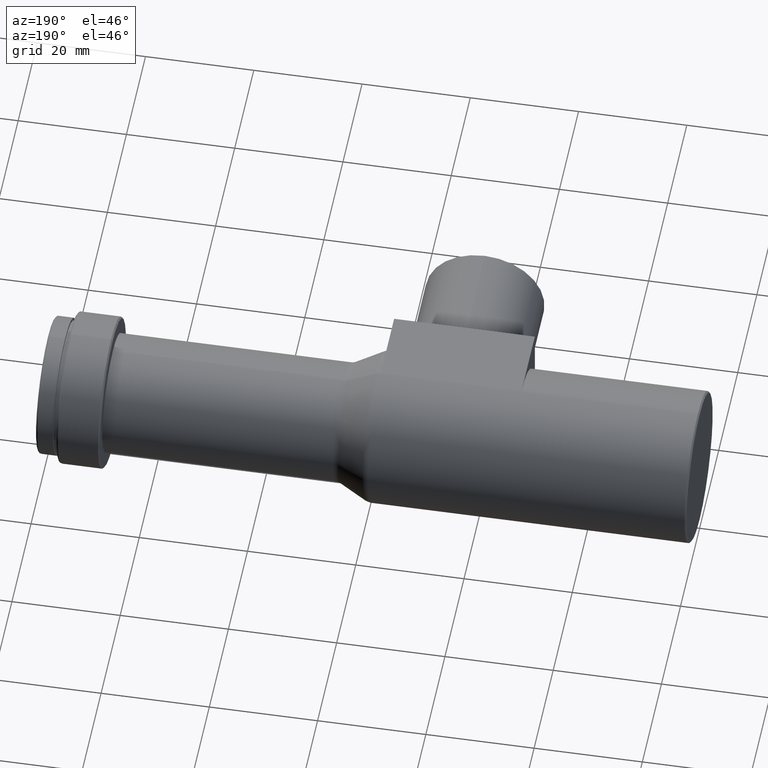
[diagram: clean part render]
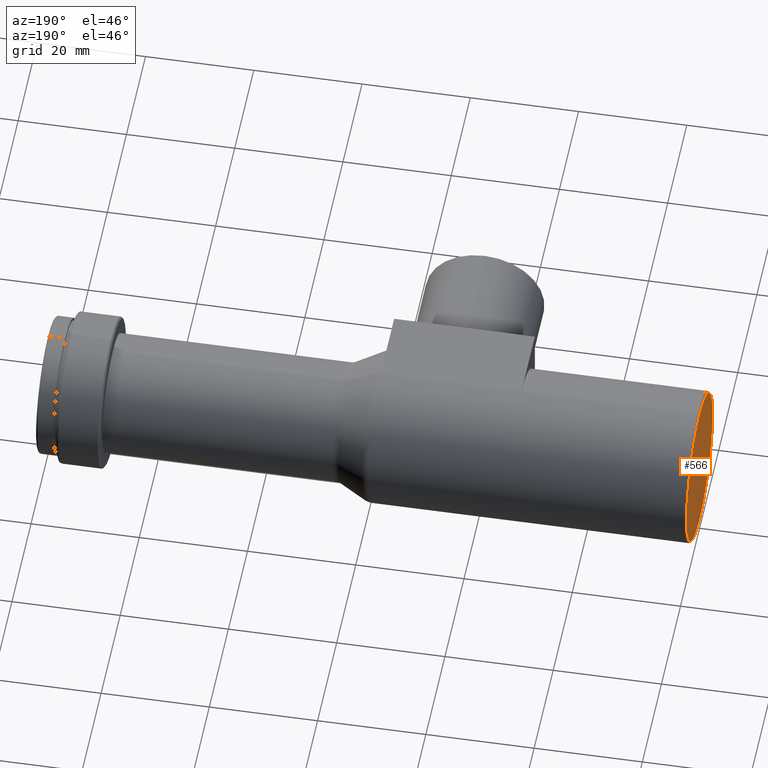
[diagram: same view with one face highlighted and labeled with its STEP entity id]
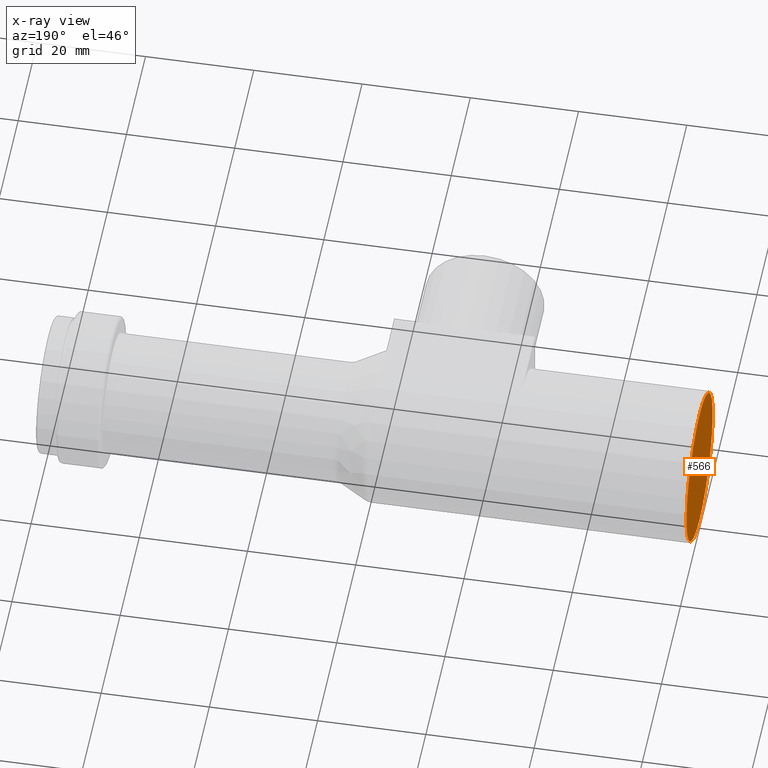
[diagram: x-ray of the same camera — body ghosted, the highlighted face saturated]
A machine part, auxiliary view. The second image highlights one B-rep face of the part: STEP entity #566.
The next image is the same camera in x-ray: the body ghosted, the highlighted face saturated — about 0% of this face is hidden behind the body in this view.
In plain terms, the highlighted planar face has unit normal (1, 0, 0).
Its self-contained STEP definition (entity closure, byte-faithful):
#3 = DIRECTION ( 'NONE',  ( -1.000000000000000000, -0.0000000000000000000, -0.0000000000000000000 ) ) ;
#74 = DIRECTION ( 'NONE',  ( 0.0000000000000000000, 0.0000000000000000000, -1.000000000000000000 ) ) ;
#86 = DIRECTION ( 'NONE',  ( 1.000000000000000000, 0.0000000000000000000, 0.0000000000000000000 ) ) ;
#117 = CIRCLE ( 'NONE', #866, 13.70000000000000100 ) ;
#165 = EDGE_CURVE ( 'NONE', #895, #267, #265, .T. ) ;
#228 = EDGE_CURVE ( 'NONE', #267, #895, #117, .T. ) ;
#234 = ORIENTED_EDGE ( 'NONE', *, *, #228, .T. ) ;
#265 = CIRCLE ( 'NONE', #995, 13.70000000000000100 ) ;
#267 = VERTEX_POINT ( 'NONE', #467 ) ;
#281 = DIRECTION ( 'NONE',  ( -1.000000000000000000, -0.0000000000000000000, -0.0000000000000000000 ) ) ;
#285 = DIRECTION ( 'NONE',  ( 0.0000000000000000000, 0.0000000000000000000, 1.000000000000000000 ) ) ;
#348 = FACE_OUTER_BOUND ( 'NONE', #413, .T. ) ;
#370 = CARTESIAN_POINT ( 'NONE',  ( 0.0000000000000000000, 0.0000000000000000000, 0.0000000000000000000 ) ) ;
#413 = EDGE_LOOP ( 'NONE', ( #234, #603 ) ) ;
#432 = DIRECTION ( 'NONE',  ( 0.0000000000000000000, 0.0000000000000000000, 1.000000000000000000 ) ) ;
#467 = CARTESIAN_POINT ( 'NONE',  ( 0.0000000000000000000, 0.0000000000000000000, -13.70000000000000100 ) ) ;
#512 = CARTESIAN_POINT ( 'NONE',  ( 0.0000000000000000000, 0.0000000000000000000, 0.0000000000000000000 ) ) ;
#564 = AXIS2_PLACEMENT_3D ( 'NONE', #512, #86, #74 ) ;
#566 = ADVANCED_FACE ( 'NONE', ( #348 ), #689, .F. ) ;
#603 = ORIENTED_EDGE ( 'NONE', *, *, #165, .T. ) ;
#636 = CARTESIAN_POINT ( 'NONE',  ( 0.0000000000000000000, 1.696135816819084200E-015, 13.70000000000000100 ) ) ;
#689 = PLANE ( 'NONE',  #564 ) ;
#772 = CARTESIAN_POINT ( 'NONE',  ( 0.0000000000000000000, 0.0000000000000000000, 0.0000000000000000000 ) ) ;
#866 = AXIS2_PLACEMENT_3D ( 'NONE', #370, #281, #285 ) ;
#895 = VERTEX_POINT ( 'NONE', #636 ) ;
#995 = AXIS2_PLACEMENT_3D ( 'NONE', #772, #3, #432 ) ;